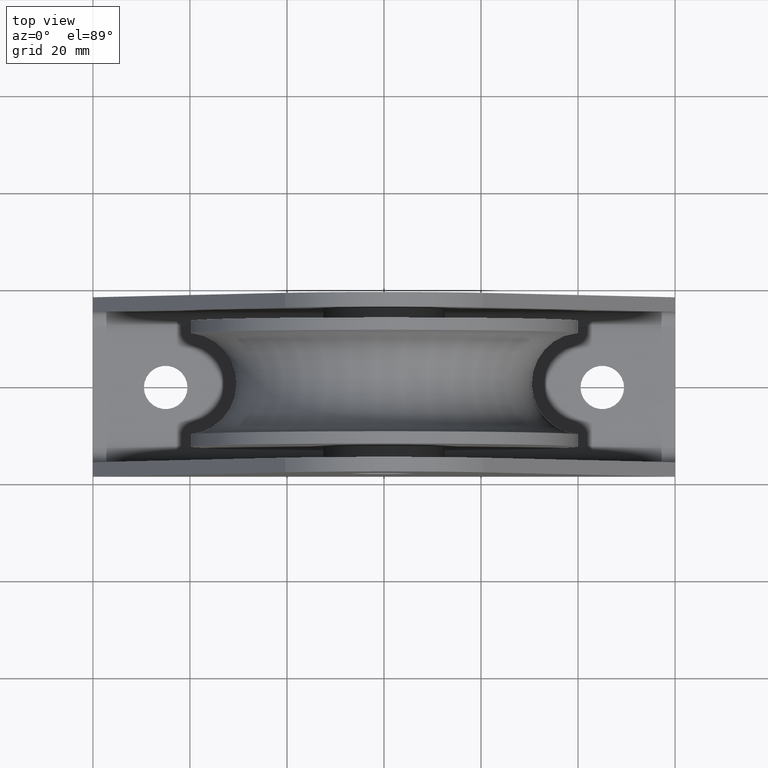
[diagram: clean part render]
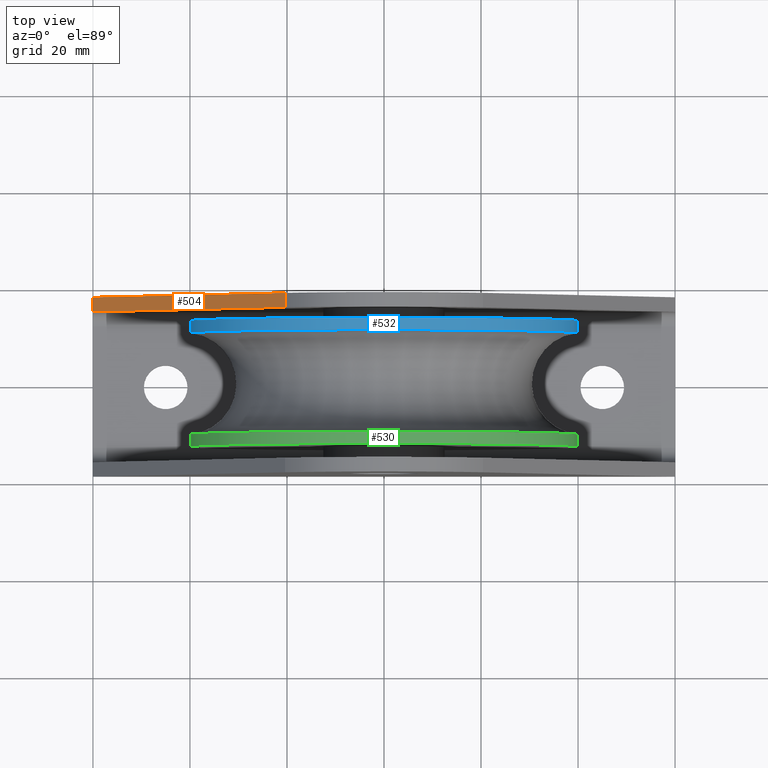
[diagram: same view with three faces highlighted in distinct colors, each labeled with its STEP entity id]
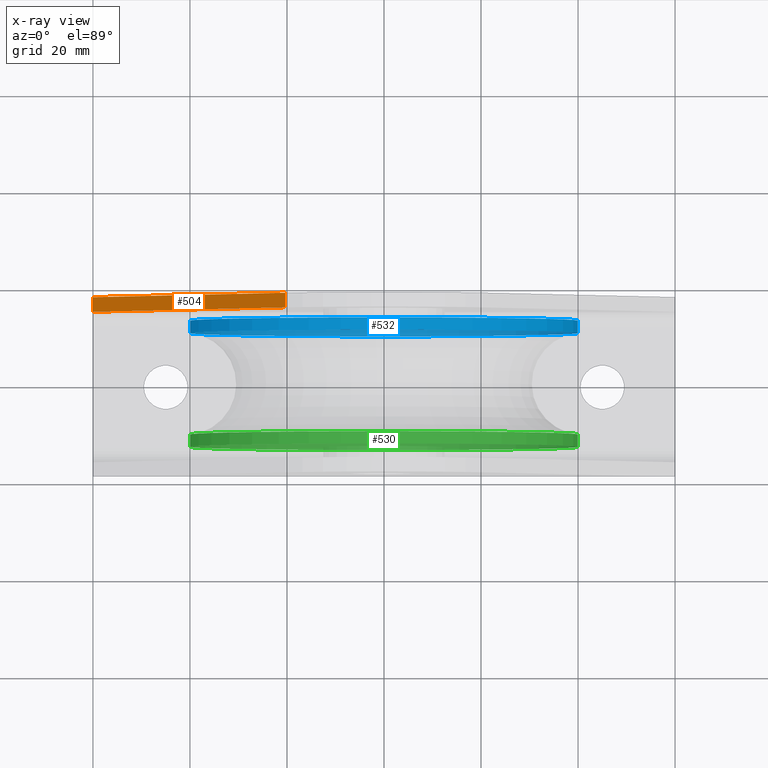
[diagram: x-ray of the same camera — body ghosted, the three highlighted faces saturated]
A machine part, top view with three faces highlighted in distinct colors.
The next image is the same camera in x-ray (body ghosted, the three faces saturated) — at least one of them is partly hidden behind the body in this view.
Their STEP definitions:

[orange] entity #504 — the highlighted planar face has unit normal (0.8, 0, -0.6).
#32=LINE('',#807,#64);
#33=LINE('',#809,#65);
#34=LINE('',#811,#66);
#35=LINE('',#812,#67);
#64=VECTOR('',#632,66.);
#65=VECTOR('',#633,3.);
#66=VECTOR('',#634,66.);
#67=VECTOR('',#635,3.);
#93=PLANE('',#547);
#137=FACE_OUTER_BOUND('',#175,.T.);
#175=EDGE_LOOP('',(#370,#371,#372,#373));
#266=VERTEX_POINT('',#805);
#267=VERTEX_POINT('',#806);
#268=VERTEX_POINT('',#808);
#269=VERTEX_POINT('',#810);
#308=EDGE_CURVE('',#266,#267,#32,.T.);
#309=EDGE_CURVE('',#266,#268,#33,.T.);
#310=EDGE_CURVE('',#269,#268,#34,.T.);
#311=EDGE_CURVE('',#269,#267,#35,.T.);
#370=ORIENTED_EDGE('',*,*,#308,.F.);
#371=ORIENTED_EDGE('',*,*,#309,.T.);
#372=ORIENTED_EDGE('',*,*,#310,.F.);
#373=ORIENTED_EDGE('',*,*,#311,.T.);
#504=ADVANCED_FACE('',(#137),#93,.F.);
#547=AXIS2_PLACEMENT_3D('',#804,#630,#631);
#630=DIRECTION('center_axis',(0.8,3.60072332310861E-17,-0.6));
#631=DIRECTION('ref_axis',(-0.6,0.,-0.8));
#632=DIRECTION('',(-0.6,-5.32604184902594E-17,-0.8));
#633=DIRECTION('',(0.,1.,6.00120553851436E-17));
#634=DIRECTION('',(0.6,5.32604184902594E-17,0.8));
#635=DIRECTION('',(0.,-1.,6.12323399573677E-17));
#804=CARTESIAN_POINT('Origin',(-20.4,-18.5,58.8));
#805=CARTESIAN_POINT('',(-20.4,15.5,58.8));
#806=CARTESIAN_POINT('',(-60.,15.5,6.));
#807=CARTESIAN_POINT('',(-22.6543008158105,15.5,55.7942655789194));
#808=CARTESIAN_POINT('',(-20.4,18.5,58.8));
#809=CARTESIAN_POINT('',(-20.4,-18.5,58.8));
#810=CARTESIAN_POINT('',(-60.,18.5,6.));
#811=CARTESIAN_POINT('',(-22.6543008158105,18.5,55.7942655789194));
#812=CARTESIAN_POINT('',(-60.,16.16,6.));

[blue] entity #532 — the highlighted cylindrical surface (bore or boss wall) has radius 40 mm, axis along (0, 1, -0).
#129=FACE_BOUND('',#219,.T.);
#165=FACE_OUTER_BOUND('',#218,.T.);
#218=EDGE_LOOP('',(#476));
#219=EDGE_LOOP('',(#477));
#253=CIRCLE('',#597,40.);
#254=CIRCLE('',#599,40.);
#295=VERTEX_POINT('',#911);
#296=VERTEX_POINT('',#914);
#357=EDGE_CURVE('',#295,#295,#253,.T.);
#358=EDGE_CURVE('',#296,#296,#254,.T.);
#476=ORIENTED_EDGE('',*,*,#358,.F.);
#477=ORIENTED_EDGE('',*,*,#357,.T.);
#498=CYLINDRICAL_SURFACE('',#598,40.);
#532=ADVANCED_FACE('',(#165,#129),#498,.T.);
#597=AXIS2_PLACEMENT_3D('',#912,#758,#759);
#598=AXIS2_PLACEMENT_3D('',#913,#760,#761);
#599=AXIS2_PLACEMENT_3D('',#915,#762,#763);
#758=DIRECTION('center_axis',(1.,0.,0.));
#759=DIRECTION('ref_axis',(0.,1.,0.));
#760=DIRECTION('center_axis',(1.,0.,0.));
#761=DIRECTION('ref_axis',(0.,1.,0.));
#762=DIRECTION('center_axis',(1.,0.,0.));
#763=DIRECTION('ref_axis',(0.,1.,0.));
#911=CARTESIAN_POINT('',(10.4522724801834,40.,0.));
#912=CARTESIAN_POINT('Origin',(10.4522724801834,0.,0.));
#913=CARTESIAN_POINT('Origin',(11.7261362400917,0.,0.));
#914=CARTESIAN_POINT('',(13.,40.,0.));
#915=CARTESIAN_POINT('Origin',(13.,0.,0.));

[green] entity #530 — the highlighted cylindrical surface (bore or boss wall) has radius 40 mm, axis along (0, 1, -0).
#127=FACE_BOUND('',#215,.T.);
#163=FACE_OUTER_BOUND('',#214,.T.);
#214=EDGE_LOOP('',(#472));
#215=EDGE_LOOP('',(#473));
#251=CIRCLE('',#593,40.);
#252=CIRCLE('',#595,40.);
#293=VERTEX_POINT('',#905);
#294=VERTEX_POINT('',#908);
#355=EDGE_CURVE('',#293,#293,#251,.T.);
#356=EDGE_CURVE('',#294,#294,#252,.T.);
#472=ORIENTED_EDGE('',*,*,#356,.F.);
#473=ORIENTED_EDGE('',*,*,#355,.T.);
#497=CYLINDRICAL_SURFACE('',#594,40.);
#530=ADVANCED_FACE('',(#163,#127),#497,.T.);
#593=AXIS2_PLACEMENT_3D('',#906,#750,#751);
#594=AXIS2_PLACEMENT_3D('',#907,#752,#753);
#595=AXIS2_PLACEMENT_3D('',#909,#754,#755);
#750=DIRECTION('center_axis',(1.,0.,0.));
#751=DIRECTION('ref_axis',(0.,1.,0.));
#752=DIRECTION('center_axis',(1.,0.,0.));
#753=DIRECTION('ref_axis',(0.,1.,0.));
#754=DIRECTION('center_axis',(1.,0.,0.));
#755=DIRECTION('ref_axis',(0.,1.,0.));
#905=CARTESIAN_POINT('',(-13.,40.,0.));
#906=CARTESIAN_POINT('Origin',(-13.,0.,0.));
#907=CARTESIAN_POINT('Origin',(-11.7261362400917,0.,0.));
#908=CARTESIAN_POINT('',(-10.4522724801834,40.,0.));
#909=CARTESIAN_POINT('Origin',(-10.4522724801834,0.,0.));